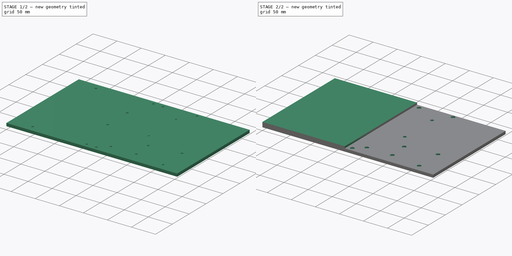
[diagram: build sequence overview — one tinted view per stage of 2, left to right]
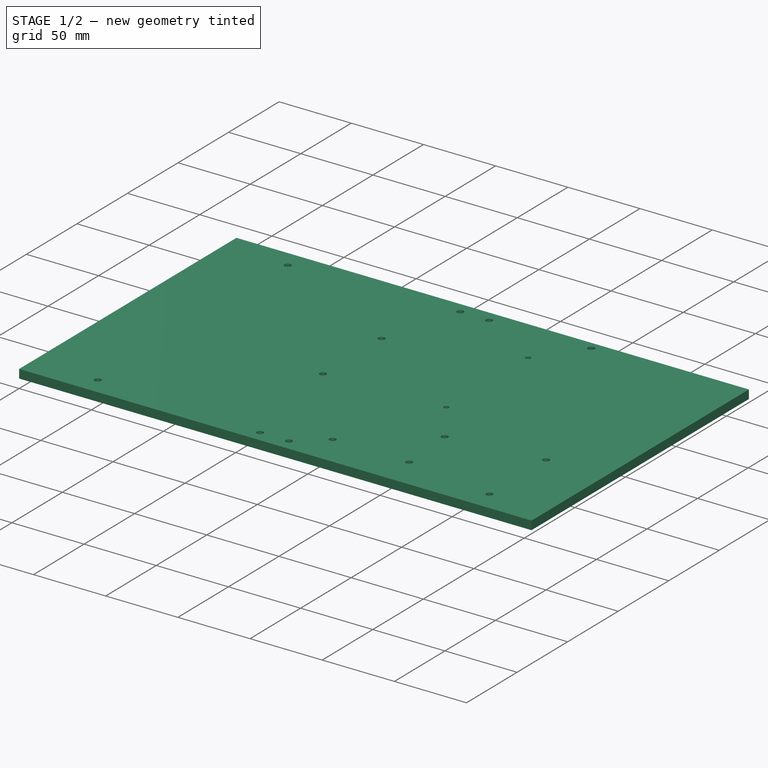
[diagram: stage 1 of 2 — iso view after this stage's code; geometry added in this stage tinted green]
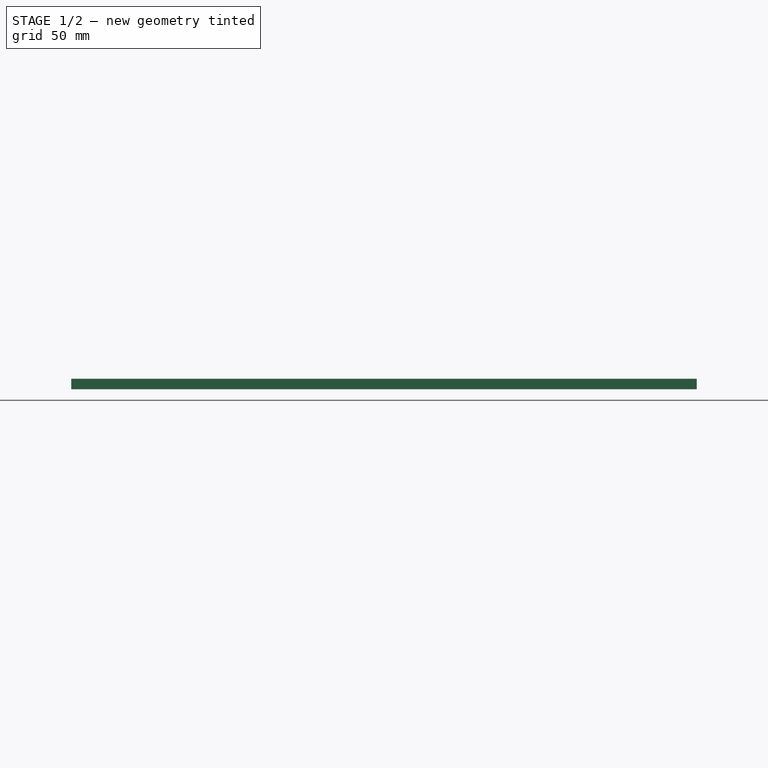
[diagram: stage 1 of 2 — front view after this stage's code; geometry added in this stage tinted green]
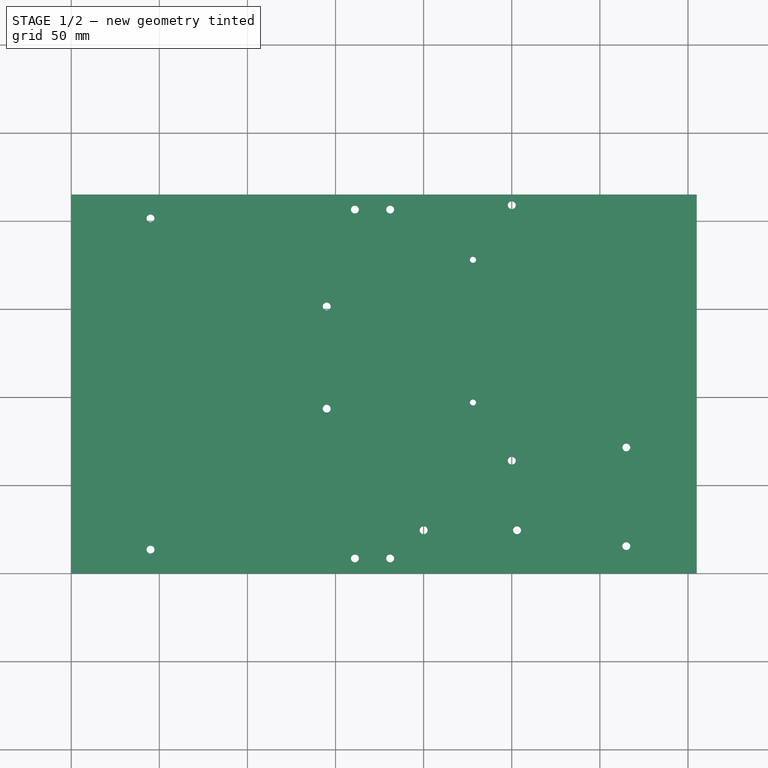
[diagram: stage 1 of 2 — top view after this stage's code; geometry added in this stage tinted green]
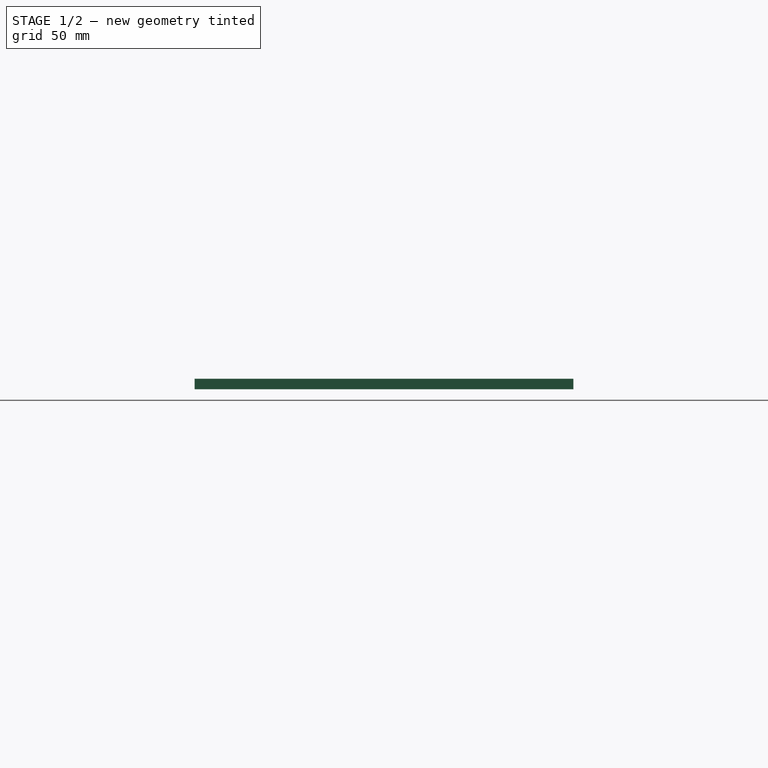
[diagram: stage 1 of 2 — right view after this stage's code; geometry added in this stage tinted green]
FCSTD DOCUMENT  (FreeCAD 1.0R38641 +468 (Git))
Label: BasePlate
License: All rights reserved
LicenseURL: https://en.wikipedia.org/wiki/All_rights_reserved
objects: Sketcher::SketchObject×3, PartDesign::Pocket×2, PartDesign::Pad×1, Part::Box×1, PartDesign::Body×1
note: 17 computed .brp shape members not serialized (recipe doc carries the construction recipe); baked Part::Feature solids carry a one-line shape summary decoded from their .brp

FEATURE [Sketcher::SketchObject] Sketch
  ArcFitTolerance = 1e-06
  AttachmentSupport = -> [XY_Plane]
  FullyConstrained = true
  MakeInternals = false
  MapMode = 5
  sketch-geometry (4):
    g0: LineSegment StartX=0 StartY=0 StartZ=0 EndX=355 EndY=0 EndZ=0
    g1: LineSegment StartX=355 StartY=0 StartZ=0 EndX=355 EndY=215 EndZ=0
    g2: LineSegment StartX=355 StartY=215 StartZ=0 EndX=0 EndY=215 EndZ=0
    g3: LineSegment StartX=0 StartY=215 StartZ=0 EndX=0 EndY=0 EndZ=0
  constraints (11):
    c: Coincident(g0,g1)
    c: Coincident(g1,g2)
    c: Coincident(g2,g3)
    c: Coincident(g3,g0)
    c: Horizontal(g0)
    c: Horizontal(g2)
    c: Vertical(g1)
    c: Vertical(g3)
    c: Distance(g1,g3) = 355
    c: Distance(g0,g2) = 215
    c: Coincident(g0,g-1)
FEATURE [PartDesign::Pad] Pad
  Direction = (0,0,1)
  Length = 6
  Length2 = 10
  Profile = -> Sketch
  ReferenceAxis = -> Sketch [N_Axis]
  Refine = true
  Suppressed = false
  Type = 0
FEATURE [Sketcher::SketchObject] Sketch001
  ArcFitTolerance = 1e-06
  AttachmentSupport = -> [Pad]
  FullyConstrained = true
  MakeInternals = false
  MapMode = 5
  Placement = pos=(0,0,6) rot=(0,0,1;0rad)
  sketch-geometry (16):
    g0: Circle CenterX=45 CenterY=13.5 CenterZ=0 NormalX=0 NormalY=0 NormalZ=1 AngleXU=0 Radius=2.25
    g1: Circle CenterX=45 CenterY=201.5 CenterZ=0 NormalX=0 NormalY=0 NormalZ=1 AngleXU=0 Radius=2.25
    g2: Circle CenterX=145 CenterY=93.5 CenterZ=0 NormalX=0 NormalY=0 NormalZ=1 AngleXU=0 Radius=2.25
    g3: Circle CenterX=145 CenterY=151.5 CenterZ=0 NormalX=0 NormalY=0 NormalZ=1 AngleXU=0 Radius=2.25
    g4: Circle CenterX=200 CenterY=24.5 CenterZ=0 NormalX=0 NormalY=0 NormalZ=1 AngleXU=0 Radius=2.25
    g5: Circle CenterX=253 CenterY=24.5 CenterZ=0 NormalX=0 NormalY=0 NormalZ=1 AngleXU=0 Radius=2.25
    g6: Circle CenterX=250 CenterY=209 CenterZ=0 NormalX=0 NormalY=0 NormalZ=1 AngleXU=0 Radius=2.25
    g7: Circle CenterX=250 CenterY=64 CenterZ=0 NormalX=0 NormalY=0 NormalZ=1 AngleXU=0 Radius=2.25
    g8: Circle CenterX=315 CenterY=15.5 CenterZ=0 NormalX=0 NormalY=0 NormalZ=1 AngleXU=0 Radius=2.25
    g9: Circle CenterX=315 CenterY=71.5 CenterZ=0 NormalX=0 NormalY=0 NormalZ=1 AngleXU=0 Radius=2.25
    g10: Circle CenterX=228 CenterY=97 CenterZ=0 NormalX=0 NormalY=0 NormalZ=1 AngleXU=0 Radius=1.75
    g11: Circle CenterX=228 CenterY=178 CenterZ=0 NormalX=0 NormalY=0 NormalZ=1 AngleXU=0 Radius=1.75
    g12: Circle CenterX=161 CenterY=8.5 CenterZ=0 NormalX=0 NormalY=0 NormalZ=1 AngleXU=0 Radius=2.25
    g13: Circle CenterX=181 CenterY=8.5 CenterZ=0 NormalX=0 NormalY=0 NormalZ=1 AngleXU=0 Radius=2.25
    g14: Circle CenterX=161 CenterY=206.5 CenterZ=0 NormalX=0 NormalY=0 NormalZ=1 AngleXU=0 Radius=2.25
    g15: Circle CenterX=181 CenterY=206.5 CenterZ=0 NormalX=0 NormalY=0 NormalZ=1 AngleXU=0 Radius=2.25
  constraints (48):
    c: Diameter(g0) = 4.5
    c: DistanceX(g-1,g0) = 45
    c: DistanceY(g-1,g0) = 13.5
    c: Diameter(g1) = 4.5
    c: DistanceX(g-1,g1) = 45
    c: DistanceY(g0,g1) = 188
    c: Diameter(g2) = 4.5
    c: DistanceY(g-1,g2) = 93.5
    c: Diameter(g3) = 4.5
    c: DistanceY(g2,g3) = 58
    c: DistanceX(g-1,g2) = 145
    c: DistanceX(g-1,g3) = 145
    c: Diameter(g4) = 4.5
    c: DistanceY(g-1,g4) = 24.5
    c: Diameter(g5) = 4.5
    c: DistanceY(g-1,g5) = 24.5
    c: DistanceX(g4,g5) = 53
    c: DistanceX(g-1,g4) = 200
    c: Diameter(g6) = 4.5
    c: DistanceY(g-1,g6) = 209
    c: DistanceX(g-1,g6) = 250
    c: Diameter(g7) = 4.5
    c: DistanceY(g7,g6) = 145
    c: DistanceX(g-1,g7) = 250
    c: Diameter(g8) = 4.5
    c: DistanceY(g-1,g8) = 15.5
    c: DistanceX(g8) = 315
    c: Diameter(g9) = 4.5
    c: DistanceX(g-1,g9) = 315
    c: DistanceY(g8,g9) = 56
    c: Diameter(g10) = 3.5
    c: DistanceY(g10) = 97
    c: DistanceX(g-1,g10) = 228
    c: Diameter(g11) = 3.5
    c: DistanceX(g-1,g11) = 228
    c: DistanceY(g-1,g11) = 178
    c: Diameter(g12) = 4.5
    c: Diameter(g13) = 4.5
    c: DistanceY(g-1,g12) = 8.5
    c: DistanceY(g-1,g13) = 8.5
    c: DistanceX(g-1,g12) = 161
    c: DistanceX(g12,g13) = 20
    c: Diameter(g14) = 4.5
    c: Diameter(g15) = 4.5
    c: DistanceY(g-1,g14) = 206.5
    c: DistanceY(g-1,g15) = 206.5
    c: DistanceX(g-1,g14) = 161
    c: DistanceX(g14,g15) = 20
FEATURE [PartDesign::Pocket] Pocket
  BaseFeature = -> Pad
  Direction = (0,0,-1)
  Length = 10
  Length2 = 5
  Profile = -> Sketch001
  ReferenceAxis = -> Sketch001 [N_Axis]
  Refine = true
  Suppressed = false
  Type = 0
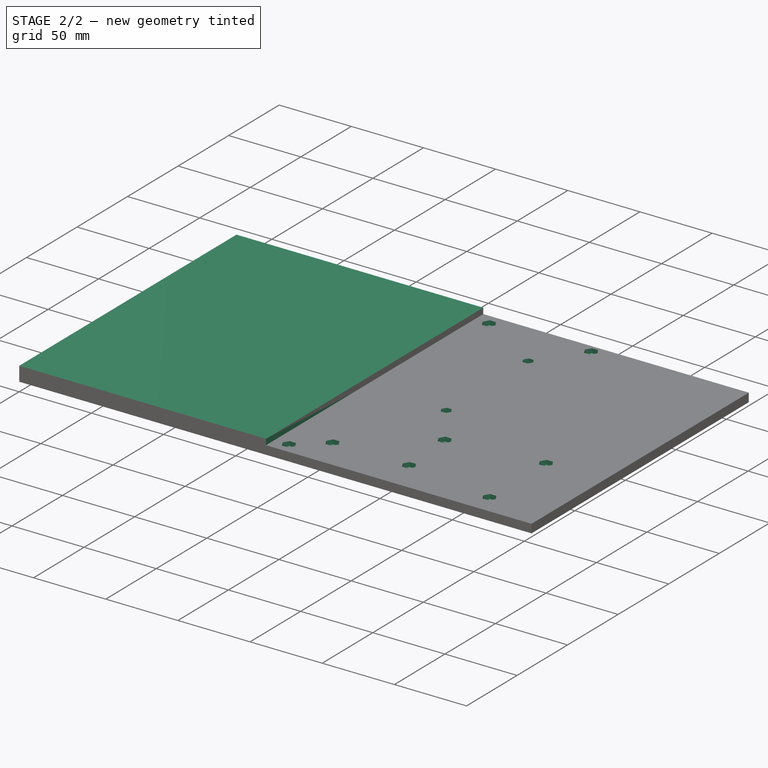
[diagram: stage 2 of 2 — iso view after this stage's code; geometry added in this stage tinted green]
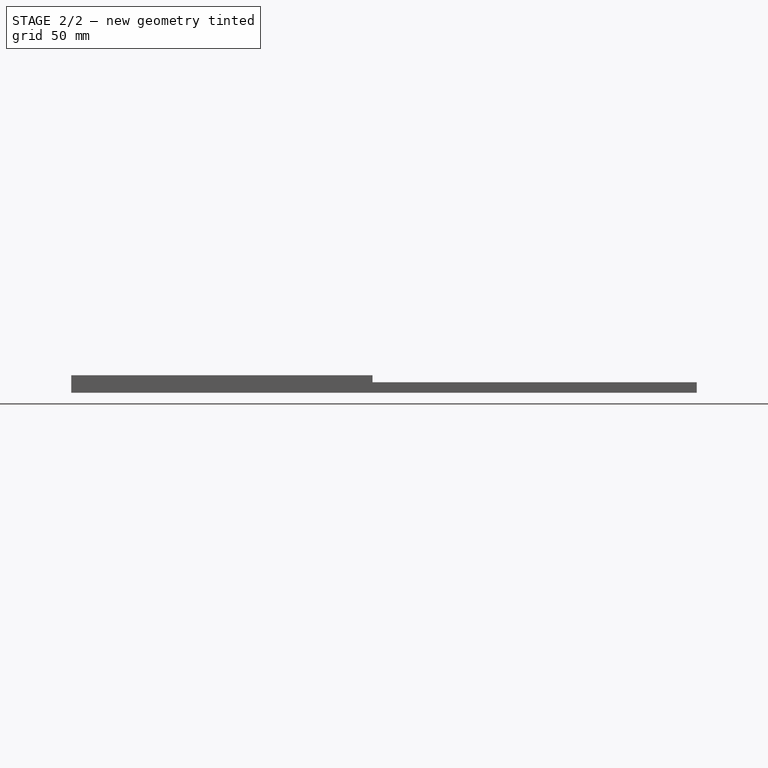
[diagram: stage 2 of 2 — front view after this stage's code; geometry added in this stage tinted green]
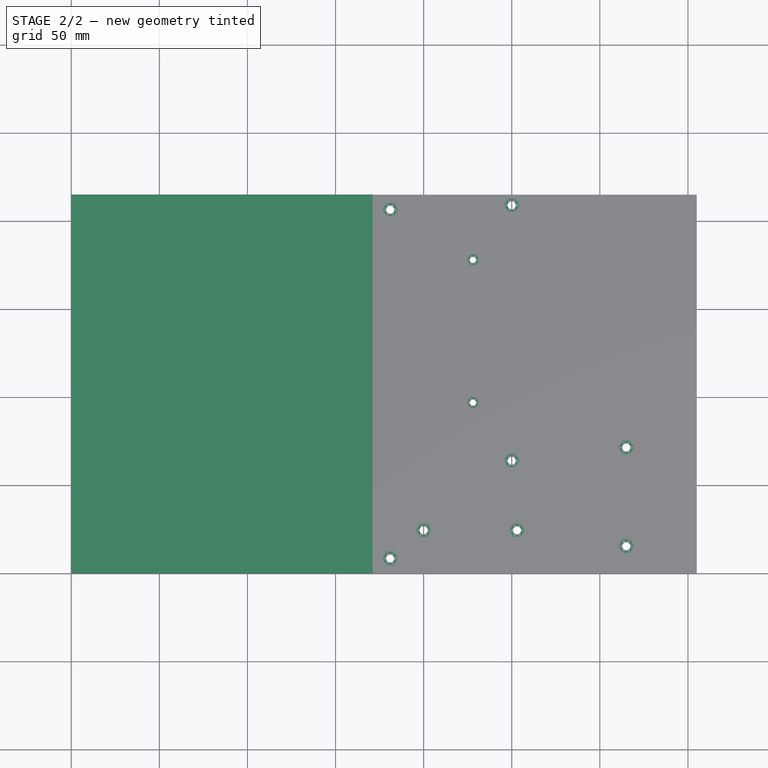
[diagram: stage 2 of 2 — top view after this stage's code; geometry added in this stage tinted green]
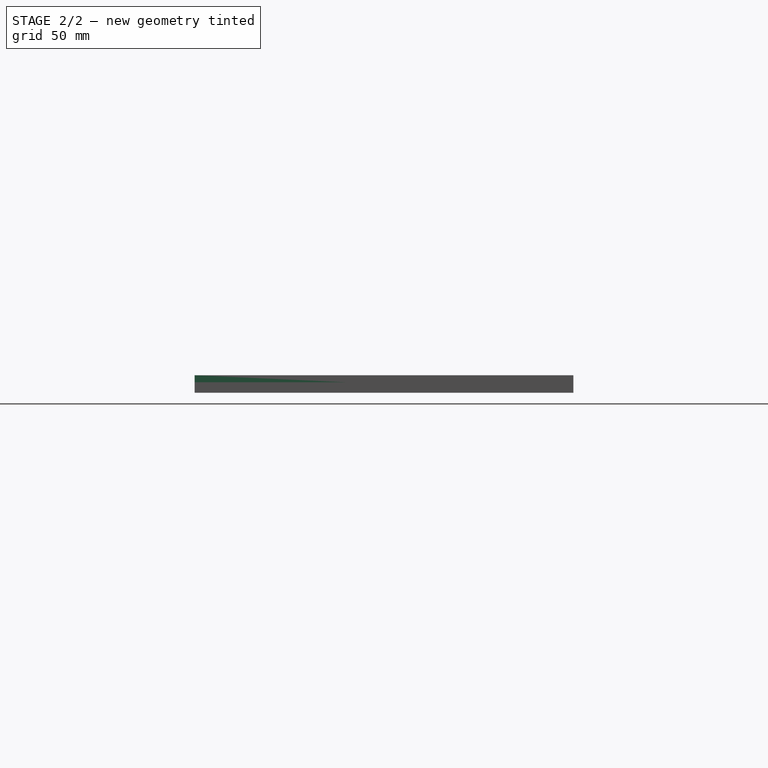
[diagram: stage 2 of 2 — right view after this stage's code; geometry added in this stage tinted green]
FEATURE [Part::Box] Box  label="Cube"
  AttacherType = Attacher::AttachEngine3D
  Height = 10
  Length = 171
  Width = 215
FEATURE [Sketcher::SketchObject] Sketch002
  ArcFitTolerance = 1e-06
  AttachmentSupport = -> [Pocket]
  FullyConstrained = true
  MakeInternals = false
  MapMode = 5
  Placement = pos=(0,0,6) rot=(0,0,1;0rad)
  sketch-geometry (112):
    g0: LineSegment StartX=47.1651 StartY=17.25 StartZ=0 EndX=42.8349 EndY=17.25 EndZ=0
    g1: LineSegment StartX=42.8349 StartY=17.25 StartZ=0 EndX=40.6699 EndY=13.5 EndZ=0
    g2: LineSegment StartX=40.6699 StartY=13.5 StartZ=0 EndX=42.8349 EndY=9.75 EndZ=0
    g3: LineSegment StartX=42.8349 StartY=9.75 StartZ=0 EndX=47.1651 EndY=9.75 EndZ=0
    g4: LineSegment StartX=47.1651 StartY=9.75 StartZ=0 EndX=49.3301 EndY=13.5 EndZ=0
    g5: LineSegment StartX=49.3301 StartY=13.5 StartZ=0 EndX=47.1651 EndY=17.25 EndZ=0
    g6: Circle [constr] CenterX=45 CenterY=13.5 CenterZ=0 NormalX=0 NormalY=0 NormalZ=1 AngleXU=0 Radius=4.33013
    g7: LineSegment StartX=47.1651 StartY=197.75 StartZ=0 EndX=49.3301 EndY=201.5 EndZ=0
    g8: LineSegment StartX=49.3301 StartY=201.5 StartZ=0 EndX=47.1651 EndY=205.25 EndZ=0
    g9: LineSegment StartX=47.1651 StartY=205.25 StartZ=0 EndX=42.8349 EndY=205.25 EndZ=0
    g10: LineSegment StartX=42.8349 StartY=205.25 StartZ=0 EndX=40.6699 EndY=201.5 EndZ=0
    g11: LineSegment StartX=40.6699 StartY=201.5 StartZ=0 EndX=42.8349 EndY=197.75 EndZ=0
    g12: LineSegment StartX=42.8349 StartY=197.75 StartZ=0 EndX=47.1651 EndY=197.75 EndZ=0
    g13: Circle [constr] CenterX=45 CenterY=201.5 CenterZ=0 NormalX=0 NormalY=0 NormalZ=1 AngleXU=0 Radius=4.33013
    g14: LineSegment StartX=147.165 StartY=97.25 StartZ=0 EndX=142.835 EndY=97.25 EndZ=0
    g15: LineSegment StartX=142.835 StartY=97.25 StartZ=0 EndX=140.67 EndY=93.5 EndZ=0
    g16: LineSegment StartX=140.67 StartY=93.5 StartZ=0 EndX=142.835 EndY=89.75 EndZ=0
    g17: LineSegment StartX=142.835 StartY=89.75 StartZ=0 EndX=147.165 EndY=89.75 EndZ=0
    g18: LineSegment StartX=147.165 StartY=89.75 StartZ=0 EndX=149.33 EndY=93.5 EndZ=0
    g19: LineSegment StartX=149.33 StartY=93.5 StartZ=0 EndX=147.165 EndY=97.25 EndZ=0
    g20: Circle [constr] CenterX=145 CenterY=93.5 CenterZ=0 NormalX=0 NormalY=0 NormalZ=1 AngleXU=0 Radius=4.33013
    g21: LineSegment StartX=149.33 StartY=151.5 StartZ=0 EndX=147.165 EndY=155.25 EndZ=0
    g22: LineSegment StartX=147.165 StartY=155.25 StartZ=0 EndX=142.835 EndY=155.25 EndZ=0
    g23: LineSegment StartX=142.835 StartY=155.25 StartZ=0 EndX=140.67 EndY=151.5 EndZ=0
    g24: LineSegment StartX=140.67 StartY=151.5 StartZ=0 EndX=142.835 EndY=147.75 EndZ=0
    g25: LineSegment StartX=142.835 StartY=147.75 StartZ=0 EndX=147.165 EndY=147.75 EndZ=0
    g26: LineSegment StartX=147.165 StartY=147.75 StartZ=0 EndX=149.33 EndY=151.5 EndZ=0
    g27: Circle [constr] CenterX=145 CenterY=151.5 CenterZ=0 NormalX=0 NormalY=0 NormalZ=1 AngleXU=0 Radius=4.33013
    g28: LineSegment StartX=163.165 StartY=12.25 StartZ=0 EndX=158.835 EndY=12.25 EndZ=0
    g29: LineSegment StartX=158.835 StartY=12.25 StartZ=0 EndX=156.67 EndY=8.5 EndZ=0
    g30: LineSegment StartX=156.67 StartY=8.5 StartZ=0 EndX=158.835 EndY=4.75 EndZ=0
    g31: LineSegment StartX=158.835 StartY=4.75 StartZ=0 EndX=163.165 EndY=4.75 EndZ=0
    g32: LineSegment StartX=163.165 StartY=4.75 StartZ=0 EndX=165.33 EndY=8.5 EndZ=0
    g33: LineSegment StartX=165.33 StartY=8.5 StartZ=0 EndX=163.165 EndY=12.25 EndZ=0
    g34: Circle [constr] CenterX=161 CenterY=8.5 CenterZ=0 NormalX=0 NormalY=0 NormalZ=1 AngleXU=0 Radius=4.33013
    g35: LineSegment StartX=183.165 StartY=12.25 StartZ=0 EndX=178.835 EndY=12.25 EndZ=0
    g36: LineSegment StartX=178.835 StartY=12.25 StartZ=0 EndX=176.67 EndY=8.5 EndZ=0
    g37: LineSegment StartX=176.67 StartY=8.5 StartZ=0 EndX=178.835 EndY=4.75 EndZ=0
    g38: LineSegment StartX=178.835 StartY=4.75 StartZ=0 EndX=183.165 EndY=4.75 EndZ=0
    g39: LineSegment StartX=183.165 StartY=4.75 StartZ=0 EndX=185.33 EndY=8.5 EndZ=0
    g40: LineSegment StartX=185.33 StartY=8.5 StartZ=0 EndX=183.165 EndY=12.25 EndZ=0
    g41: Circle [constr] CenterX=181 CenterY=8.5 CenterZ=0 NormalX=0 NormalY=0 NormalZ=1 AngleXU=0 Radius=4.33013
    g42: LineSegment StartX=163.165 StartY=202.75 StartZ=0 EndX=165.33 EndY=206.5 EndZ=0
    g43: LineSegment StartX=165.33 StartY=206.5 StartZ=0 EndX=163.165 EndY=210.25 EndZ=0
    g44: LineSegment StartX=163.165 StartY=210.25 StartZ=0 EndX=158.835 EndY=210.25 EndZ=0
    g45: LineSegment StartX=158.835 StartY=210.25 StartZ=0 EndX=156.67 EndY=206.5 EndZ=0
    g46: LineSegment StartX=156.67 StartY=206.5 StartZ=0 EndX=158.835 EndY=202.75 EndZ=0
    g47: LineSegment StartX=158.835 StartY=202.75 StartZ=0 EndX=163.165 EndY=202.75 EndZ=0
    g48: Circle [constr] CenterX=161 CenterY=206.5 CenterZ=0 NormalX=0 NormalY=0 NormalZ=1 AngleXU=0 Radius=4.33013
    g49: LineSegment StartX=183.165 StartY=202.75 StartZ=0 EndX=185.33 EndY=206.5 EndZ=0
    g50: LineSegment StartX=185.33 StartY=206.5 StartZ=0 EndX=183.165 EndY=210.25 EndZ=0
    g51: LineSegment StartX=183.165 StartY=210.25 StartZ=0 EndX=178.835 EndY=210.25 EndZ=0
    g52: LineSegment StartX=178.835 StartY=210.25 StartZ=0 EndX=176.67 EndY=206.5 EndZ=0
    g53: LineSegment StartX=176.67 StartY=206.5 StartZ=0 EndX=178.835 EndY=202.75 EndZ=0
    g54: LineSegment StartX=178.835 StartY=202.75 StartZ=0 EndX=183.165 EndY=202.75 EndZ=0
    g55: Circle [constr] CenterX=181 CenterY=206.5 CenterZ=0 NormalX=0 NormalY=0 NormalZ=1 AngleXU=0 Radius=4.33013
    g56: LineSegment StartX=202.165 StartY=28.25 StartZ=0 EndX=197.835 EndY=28.25 EndZ=0
    g57: LineSegment StartX=197.835 StartY=28.25 StartZ=0 EndX=195.67 EndY=24.5 EndZ=0
    g58: LineSegment StartX=195.67 StartY=24.5 StartZ=0 EndX=197.835 EndY=20.75 EndZ=0
    g59: LineSegment StartX=197.835 StartY=20.75 StartZ=0 EndX=202.165 EndY=20.75 EndZ=0
    g60: LineSegment StartX=202.165 StartY=20.75 StartZ=0 EndX=204.33 EndY=24.5 EndZ=0
    g61: LineSegment StartX=204.33 StartY=24.5 StartZ=0 EndX=202.165 EndY=28.25 EndZ=0
    g62: Circle [constr] CenterX=200 CenterY=24.5 CenterZ=0 NormalX=0 NormalY=0 NormalZ=1 AngleXU=0 Radius=4.33013
    g63: LineSegment StartX=255.165 StartY=28.25 StartZ=0 EndX=250.835 EndY=28.25 EndZ=0
    g64: LineSegment StartX=250.835 StartY=28.25 StartZ=0 EndX=248.67 EndY=24.5 EndZ=0
    g65: LineSegment StartX=248.67 StartY=24.5 StartZ=0 EndX=250.835 EndY=20.75 EndZ=0
    g66: LineSegment StartX=250.835 StartY=20.75 StartZ=0 EndX=255.165 EndY=20.75 EndZ=0
    g67: LineSegment StartX=255.165 StartY=20.75 StartZ=0 EndX=257.33 EndY=24.5 EndZ=0
    g68: LineSegment StartX=257.33 StartY=24.5 StartZ=0 EndX=255.165 EndY=28.25 EndZ=0
    g69: Circle [constr] CenterX=253 CenterY=24.5 CenterZ=0 NormalX=0 NormalY=0 NormalZ=1 AngleXU=0 Radius=4.33013
    g70: LineSegment StartX=252.165 StartY=60.25 StartZ=0 EndX=254.33 EndY=64 EndZ=0
    g71: LineSegment StartX=254.33 StartY=64 StartZ=0 EndX=252.165 EndY=67.75 EndZ=0
    g72: LineSegment StartX=252.165 StartY=67.75 StartZ=0 EndX=247.835 EndY=67.75 EndZ=0
    g73: LineSegment StartX=247.835 StartY=67.75 StartZ=0 EndX=245.67 EndY=64 EndZ=0
    g74: LineSegment StartX=245.67 StartY=64 StartZ=0 EndX=247.835 EndY=60.25 EndZ=0
    g75: LineSegment StartX=247.835 StartY=60.25 StartZ=0 EndX=252.165 EndY=60.25 EndZ=0
    g76: Circle [constr] CenterX=250 CenterY=64 CenterZ=0 NormalX=0 NormalY=0 NormalZ=1 AngleXU=0 Radius=4.33013
    g77: LineSegment StartX=252.165 StartY=205.25 StartZ=0 EndX=254.33 EndY=209 EndZ=0
    g78: LineSegment StartX=254.33 StartY=209 StartZ=0 EndX=252.165 EndY=212.75 EndZ=0
    g79: LineSegment StartX=252.165 StartY=212.75 StartZ=0 EndX=247.835 EndY=212.75 EndZ=0
    g80: LineSegment StartX=247.835 StartY=212.75 StartZ=0 EndX=245.67 EndY=209 EndZ=0
    g81: LineSegment StartX=245.67 StartY=209 StartZ=0 EndX=247.835 EndY=205.25 EndZ=0
    g82: LineSegment StartX=247.835 StartY=205.25 StartZ=0 EndX=252.165 EndY=205.25 EndZ=0
    g83: Circle [constr] CenterX=250 CenterY=209 CenterZ=0 NormalX=0 NormalY=0 NormalZ=1 AngleXU=0 Radius=4.33013
    g84: LineSegment StartX=317.165 StartY=19.25 StartZ=0 EndX=312.835 EndY=19.25 EndZ=0
    g85: LineSegment StartX=312.835 StartY=19.25 StartZ=0 EndX=310.67 EndY=15.5 EndZ=0
    g86: LineSegment StartX=310.67 StartY=15.5 StartZ=0 EndX=312.835 EndY=11.75 EndZ=0
    g87: LineSegment StartX=312.835 StartY=11.75 StartZ=0 EndX=317.165 EndY=11.75 EndZ=0
    g88: LineSegment StartX=317.165 StartY=11.75 StartZ=0 EndX=319.33 EndY=15.5 EndZ=0
    g89: LineSegment StartX=319.33 StartY=15.5 StartZ=0 EndX=317.165 EndY=19.25 EndZ=0
    g90: Circle [constr] CenterX=315 CenterY=15.5 CenterZ=0 NormalX=0 NormalY=0 NormalZ=1 AngleXU=0 Radius=4.33013
    g91: LineSegment StartX=319.33 StartY=71.5 StartZ=0 EndX=317.165 EndY=75.25 EndZ=0
    g92: LineSegment StartX=317.165 StartY=75.25 StartZ=0 EndX=312.835 EndY=75.25 EndZ=0
    g93: LineSegment StartX=312.835 StartY=75.25 StartZ=0 EndX=310.67 EndY=71.5 EndZ=0
    g94: LineSegment StartX=310.67 StartY=71.5 StartZ=0 EndX=312.835 EndY=67.75 EndZ=0
    g95: LineSegment StartX=312.835 StartY=67.75 StartZ=0 EndX=317.165 EndY=67.75 EndZ=0
    g96: LineSegment StartX=317.165 StartY=67.75 StartZ=0 EndX=319.33 EndY=71.5 EndZ=0
    g97: Circle [constr] CenterX=315 CenterY=71.5 CenterZ=0 NormalX=0 NormalY=0 NormalZ=1 AngleXU=0 Radius=4.33013
    g98: LineSegment StartX=231.464 StartY=97 StartZ=0 EndX=229.732 EndY=100 EndZ=0
    g99: LineSegment StartX=229.732 StartY=100 StartZ=0 EndX=226.268 EndY=100 EndZ=0
    g100: LineSegment StartX=226.268 StartY=100 StartZ=0 EndX=224.536 EndY=97 EndZ=0
    g101: LineSegment StartX=224.536 StartY=97 StartZ=0 EndX=226.268 EndY=94 EndZ=0
    g102: LineSegment StartX=226.268 StartY=94 StartZ=0 EndX=229.732 EndY=94 EndZ=0
    g103: LineSegment StartX=229.732 StartY=94 StartZ=0 EndX=231.464 EndY=97 EndZ=0
    g104: Circle [constr] CenterX=228 CenterY=97 CenterZ=0 NormalX=0 NormalY=0 NormalZ=1 AngleXU=0 Radius=3.4641
    g105: LineSegment StartX=229.732 StartY=181 StartZ=0 EndX=226.268 EndY=181 EndZ=0
    g106: LineSegment StartX=226.268 StartY=181 StartZ=0 EndX=224.536 EndY=178 EndZ=0
    g107: LineSegment StartX=224.536 StartY=178 StartZ=0 EndX=226.268 EndY=175 EndZ=0
    g108: LineSegment StartX=226.268 StartY=175 StartZ=0 EndX=229.732 EndY=175 EndZ=0
    g109: LineSegment StartX=229.732 StartY=175 StartZ=0 EndX=231.464 EndY=178 EndZ=0
    g110: LineSegment StartX=231.464 StartY=178 StartZ=0 EndX=229.732 EndY=181 EndZ=0
    g111: Circle [constr] CenterX=228 CenterY=178 CenterZ=0 NormalX=0 NormalY=0 NormalZ=1 AngleXU=0 Radius=3.4641
  constraints (272):
    c: Coincident(g0,g1)
    c: Coincident(g1,g2)
    c: Coincident(g2,g3)
    c: Coincident(g3,g4)
    c: Coincident(g4,g5)
    c: Coincident(g5,g0)
    c: Equal(g0, g1-g5) x5
    c: PointOnObject(g0,g6)
    c: PointOnObject(g1,g6)
    c: PointOnObject(g2,g6)
    c: PointOnObject(g3,g6)
    c: PointOnObject(g4,g6)
    c: PointOnObject(g5,g6)
    c: Parallel(g3,g-1)
    c: DistanceY(g-1,g6) = 13.5
    c: DistanceX(g-1,g6) = 45
    c: DistanceY(g3,g0) = 7.5
    c: Coincident(g7,g8)
    c: Coincident(g8,g9)
    c: Coincident(g9,g10)
    c: Coincident(g10,g11)
    c: Coincident(g11,g12)
    c: Coincident(g12,g7)
    c: Equal(g7, g8-g12) x5
    c: PointOnObject(g7,g13)
    c: PointOnObject(g8,g13)
    c: PointOnObject(g9,g13)
    c: PointOnObject(g10,g13)
    c: PointOnObject(g11,g13)
    c: PointOnObject(g12,g13)
    c: DistanceY(g6,g13) = 188
    c: Parallel(g12,g-1)
    c: DistanceY(g7,g8) = 7.5
    c: DistanceX(g-1,g13) = 45
    c: Coincident(g14,g15)
    c: Coincident(g15,g16)
    c: Coincident(g16,g17)
    c: Coincident(g17,g18)
    c: Coincident(g18,g19)
    c: Coincident(g19,g14)
    c: Equal(g14, g15-g19) x5
    c: PointOnObject(g14,g20)
    c: PointOnObject(g15,g20)
    c: PointOnObject(g16,g20)
    c: PointOnObject(g17,g20)
    c: PointOnObject(g18,g20)
    c: PointOnObject(g19,g20)
    c: DistanceY(g-1,g20) = 93.5
    c: Parallel(g17,g-1)
    c: DistanceY(g17,g14) = 7.5
    c: DistanceX(g-1,g20) = 145
    c: Coincident(g21,g22)
    c: Coincident(g22,g23)
    c: Coincident(g23,g24)
    c: Coincident(g24,g25)
    c: Coincident(g25,g26)
    c: Coincident(g26,g21)
    c: Equal(g21, g22-g26) x5
    c: PointOnObject(g21,g27)
    c: PointOnObject(g22,g27)
    c: PointOnObject(g23,g27)
    c: PointOnObject(g24,g27)
    c: PointOnObject(g25,g27)
    c: PointOnObject(g26,g27)
    c: Parallel(g25,g-1)
    c: DistanceY(g25,g21) = 7.5
    c: DistanceX(g-1,g27) = 145
    c: DistanceY(g20,g27) = 58
    c: Coincident(g28,g29)
    c: Coincident(g29,g30)
    c: Coincident(g30,g31)
    c: Coincident(g31,g32)
    c: Coincident(g32,g33)
    c: Coincident(g33,g28)
    c: Equal(g28, g29-g33) x5
    c: PointOnObject(g28,g34)
    c: PointOnObject(g29,g34)
    c: PointOnObject(g30,g34)
    c: PointOnObject(g31,g34)
    c: PointOnObject(g32,g34)
    c: PointOnObject(g33,g34)
    c: Parallel(g31,g-1)
    c: DistanceX(g-1,g34) = 161
    c: DistanceY(g-1,g34) = 8.5
    c: DistanceY(g31,g28) = 7.5
    c: Coincident(g35,g36)
    c: Coincident(g36,g37)
    c: Coincident(g37,g38)
    c: Coincident(g38,g39)
    c: Coincident(g39,g40)
    c: Coincident(g40,g35)
    c: Equal(g35, g36-g40) x5
    c: PointOnObject(g35,g41)
    c: PointOnObject(g36,g41)
    c: PointOnObject(g37,g41)
    c: PointOnObject(g38,g41)
    c: PointOnObject(g39,g41)
    c: PointOnObject(g40,g41)
    c: Parallel(g38,g-1)
    c: DistanceY(g38,g35) = 7.5
    c: DistanceX(g34,g41) = 20
    c: DistanceY(g-1,g41) = 8.5
    c: Coincident(g42,g43)
    c: Coincident(g43,g44)
    c: Coincident(g44,g45)
    c: Coincident(g45,g46)
    c: Coincident(g46,g47)
    c: Coincident(g47,g42)
    c: Equal(g42, g43-g47) x5
    c: PointOnObject(g42,g48)
    c: PointOnObject(g43,g48)
    c: PointOnObject(g44,g48)
    c: PointOnObject(g45,g48)
    c: PointOnObject(g46,g48)
    c: PointOnObject(g47,g48)
    c: Coincident(g49,g50)
    c: Coincident(g50,g51)
    c: Coincident(g51,g52)
    c: Coincident(g52,g53)
    c: Coincident(g53,g54)
    c: Coincident(g54,g49)
    c: Equal(g49, g50-g54) x5
    c: PointOnObject(g49,g55)
    c: PointOnObject(g50,g55)
    c: PointOnObject(g51,g55)
    c: PointOnObject(g52,g55)
    c: PointOnObject(g53,g55)
    c: PointOnObject(g54,g55)
    c: Parallel(g47,g-1)
    c: DistanceY(g42,g43) = 7.5
    c: DistanceX(g-1,g48) = 161
    c: DistanceY(g-1,g48) = 206.5
    c: Parallel(g54,g-1)
    c: DistanceY(g49,g50) = 7.5
    c: DistanceX(g48,g55) = 20
    c: DistanceY(g-1,g55) = 206.5
    c: Coincident(g56,g57)
    c: Coincident(g57,g58)
    c: Coincident(g58,g59)
    c: Coincident(g59,g60)
    c: Coincident(g60,g61)
    c: Coincident(g61,g56)
    c: Equal(g56, g57-g61) x5
    c: PointOnObject(g56,g62)
    c: PointOnObject(g57,g62)
    c: PointOnObject(g58,g62)
    c: PointOnObject(g59,g62)
    c: PointOnObject(g60,g62)
    c: PointOnObject(g61,g62)
    c: Parallel(g59,g-1)
    c: DistanceY(g59,g56) = 7.5
    c: DistanceY(g-1,g62) = 24.5
    c: DistanceX(g-1,g62) = 200
    c: Coincident(g63,g64)
    c: Coincident(g64,g65)
    c: Coincident(g65,g66)
    c: Coincident(g66,g67)
    c: Coincident(g67,g68)
    c: Coincident(g68,g63)
    c: Equal(g63, g64-g68) x5
    c: PointOnObject(g63,g69)
    c: PointOnObject(g64,g69)
    c: PointOnObject(g65,g69)
    c: PointOnObject(g66,g69)
    c: PointOnObject(g67,g69)
    c: PointOnObject(g68,g69)
    c: DistanceX(g62,g69) = 53
    c: Parallel(g66,g-1)
    c: DistanceY(g66,g63) = 7.5
    c: DistanceY(g-1,g69) = 24.5
    c: Coincident(g70,g71)
    c: Coincident(g71,g72)
    c: Coincident(g72,g73)
    c: Coincident(g73,g74)
    c: Coincident(g74,g75)
    c: Coincident(g75,g70)
    c: Equal(g70, g71-g75) x5
    c: PointOnObject(g70,g76)
    c: PointOnObject(g71,g76)
    c: PointOnObject(g72,g76)
    c: PointOnObject(g73,g76)
    c: PointOnObject(g74,g76)
    c: PointOnObject(g75,g76)
    c: Parallel(g75,g-1)
    c: DistanceX(g-1,g76) = 250
    c: DistanceY(g70,g71) = 7.5
    c: Coincident(g77,g78)
    c: Coincident(g78,g79)
    c: Coincident(g79,g80)
    c: Coincident(g80,g81)
    c: Coincident(g81,g82)
    c: Coincident(g82,g77)
    c: Equal(g77, g78-g82) x5
    c: PointOnObject(g77,g83)
    c: PointOnObject(g78,g83)
    c: PointOnObject(g79,g83)
    c: PointOnObject(g80,g83)
    c: PointOnObject(g81,g83)
    c: PointOnObject(g82,g83)
    c: Parallel(g82,g-1)
    c: DistanceY(g77,g78) = 7.5
    c: DistanceX(g-1,g83) = 250
    c: DistanceY(g-1,g83) = 209
    c: DistanceY(g76,g83) = 145
    c: Coincident(g84,g85)
    c: Coincident(g85,g86)
    c: Coincident(g86,g87)
    c: Coincident(g87,g88)
    c: Coincident(g88,g89)
    c: Coincident(g89,g84)
    c: Equal(g84, g85-g89) x5
    c: PointOnObject(g84,g90)
    c: PointOnObject(g85,g90)
    c: PointOnObject(g86,g90)
    c: PointOnObject(g87,g90)
    c: PointOnObject(g88,g90)
    c: PointOnObject(g89,g90)
    c: Parallel(g87,g-1)
    c: DistanceY(g87,g84) = 7.5
    c: DistanceY(g-1,g90) = 15.5
    c: DistanceX(g-1,g90) = 315
    c: Coincident(g91,g92)
    c: Coincident(g92,g93)
    c: Coincident(g93,g94)
    c: Coincident(g94,g95)
    c: Coincident(g95,g96)
    c: Coincident(g96,g91)
    c: Equal(g91, g92-g96) x5
    c: PointOnObject(g91,g97)
    c: PointOnObject(g92,g97)
    c: PointOnObject(g93,g97)
    c: PointOnObject(g94,g97)
    c: PointOnObject(g95,g97)
    c: PointOnObject(g96,g97)
    c: Parallel(g95,g-1)
    c: DistanceY(g95,g91) = 7.5
    c: DistanceY(g90,g97) = 56
    c: DistanceX(g-1,g97) = 315
    c: Coincident(g98,g99)
    c: Coincident(g99,g100)
    c: Coincident(g100,g101)
    c: Coincident(g101,g102)
    c: Coincident(g102,g103)
    c: Coincident(g103,g98)
    c: Equal(g98, g99-g103) x5
    c: PointOnObject(g98,g104)
    c: PointOnObject(g99,g104)
    c: PointOnObject(g100,g104)
    c: PointOnObject(g101,g104)
    c: PointOnObject(g102,g104)
    c: PointOnObject(g103,g104)
    c: Parallel(g-1,g102)
    c: DistanceY(g102,g98) = 6
    c: DistanceY(g-1,g104) = 97
    c: DistanceX(g-1,g104) = 228
    c: Coincident(g105,g106)
    c: Coincident(g106,g107)
    c: Coincident(g107,g108)
    c: Coincident(g108,g109)
    c: Coincident(g109,g110)
    c: Coincident(g110,g105)
    c: Equal(g105, g106-g110) x5
    c: PointOnObject(g105,g111)
    c: PointOnObject(g106,g111)
    c: PointOnObject(g107,g111)
    c: PointOnObject(g108,g111)
    c: PointOnObject(g109,g111)
    c: PointOnObject(g110,g111)
    c: Parallel(g108,g-1)
    c: DistanceY(g-1,g111) = 178
    c: DistanceY(g108,g105) = 6
    c: DistanceX(g-1,g111) = 228
FEATURE [PartDesign::Pocket] Pocket001
  BaseFeature = -> Pocket
  Direction = (0,0,-1)
  Length = 3
  Length2 = 5
  Profile = -> Sketch002
  ReferenceAxis = -> Sketch002 [N_Axis]
  Refine = true
  Suppressed = false
  Type = 0
FEATURE [PartDesign::Body] Body
  AllowCompound = false
  Group = -> [Sketch,Pad,Sketch001,Pocket,Sketch002,Pocket001]
  Origin = -> Origin
  Tip = -> Pocket001
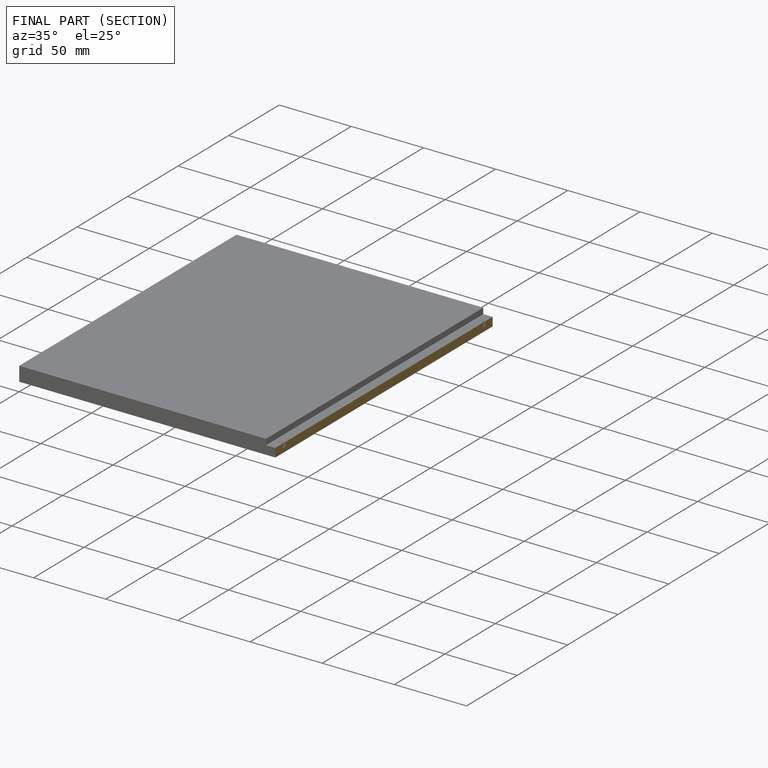
[diagram: finished part — half-section view (interior)]
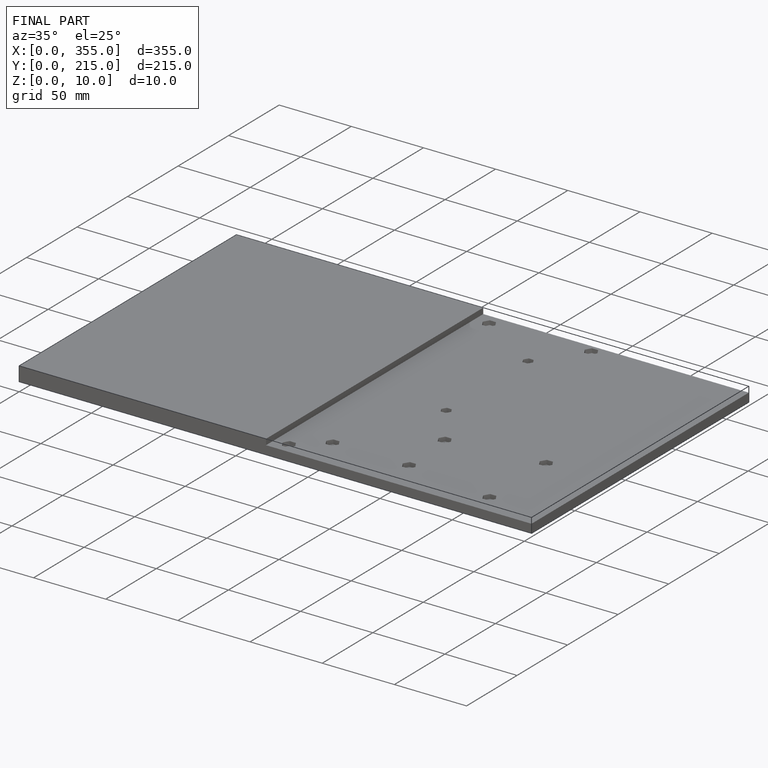
[diagram: finished part — iso view with bounding-box wireframe]
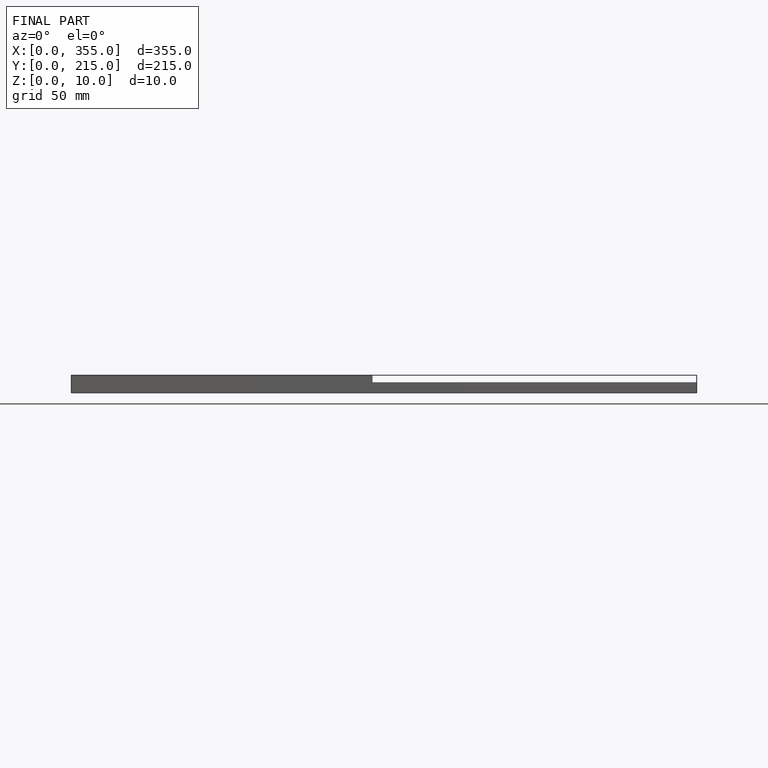
[diagram: finished part — front view with bounding-box wireframe]
